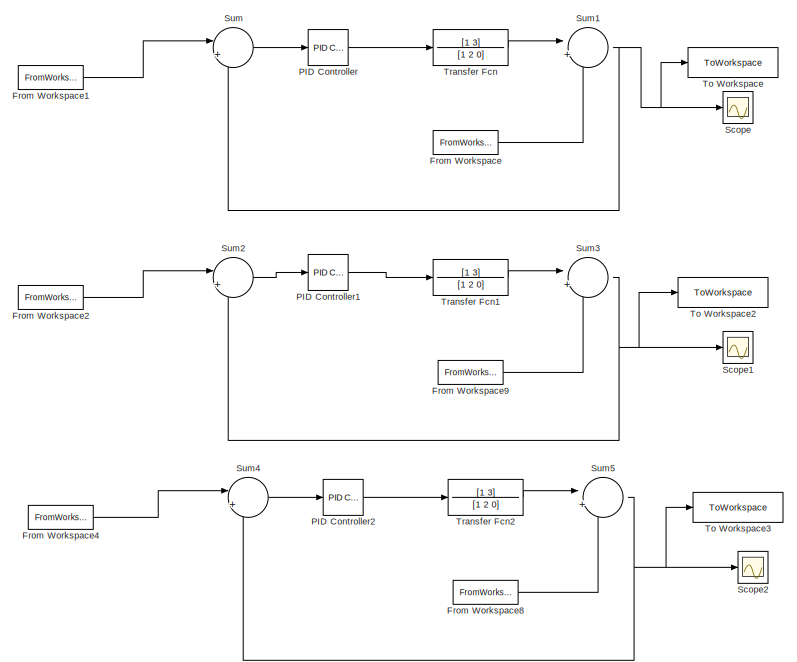
[diagram: root canvas - part 1/2, left side, full height]
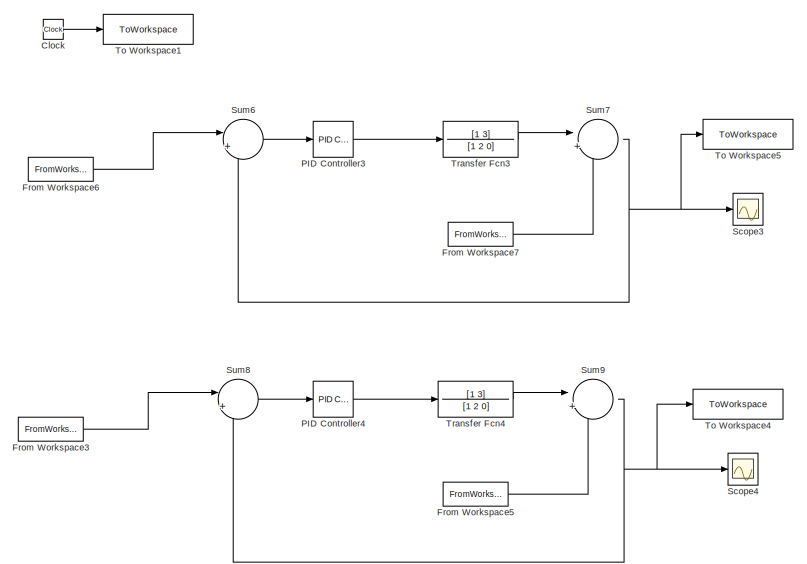
[diagram: root canvas - part 2/2, right side, full height]
MODEL slx_20164cb45cb2
KIND model
CONFIG AbsTol = auto
CONFIG EnableMultiTasking = off
CONFIG FixedStep = auto
CONFIG MaxStep = auto
CONFIG MinStep = auto
CONFIG RelTol = 1e-3
CONFIG SampleTimeConstraint = Unconstrained
CONFIG SolverName = VariableStepAuto
CONFIG StartTime = 0.0
CONFIG StopTime = 20
BLOCK [Clock] Clock
BLOCK [FromWorkspace] From Workspace
  VariableName = Theta
BLOCK [FromWorkspace] From Workspace1
  VariableName = Theta_desired
BLOCK [FromWorkspace] From Workspace2
  VariableName = X_desired
BLOCK [FromWorkspace] From Workspace3
  VariableName = Fy_desired
BLOCK [FromWorkspace] From Workspace4
  VariableName = Y_desired
BLOCK [FromWorkspace] From Workspace5
  VariableName = Fy
BLOCK [FromWorkspace] From Workspace6
  VariableName = Fx_desired
BLOCK [FromWorkspace] From Workspace7
  VariableName = Fx
BLOCK [FromWorkspace] From Workspace8
  VariableName = Y
BLOCK [FromWorkspace] From Workspace9
  VariableName = X
BLOCK [Reference] PID Controller  REF=slpidlib/PID Controller
  LibrarySourceBlock = simulink/Continuous/PID Controller
  SourceBlock = slpidlib/PID Controller
  SourceType = PID 1dof
BLOCK [Reference] PID Controller1  REF=slpidlib/PID Controller
  LibrarySourceBlock = simulink/Continuous/PID Controller
  SourceBlock = slpidlib/PID Controller
  SourceType = PID 1dof
BLOCK [Reference] PID Controller2  REF=slpidlib/PID Controller
  LibrarySourceBlock = simulink/Continuous/PID Controller
  SourceBlock = slpidlib/PID Controller
  SourceType = PID 1dof
BLOCK [Reference] PID Controller3  REF=slpidlib/PID Controller
  LibrarySourceBlock = simulink/Continuous/PID Controller
  SourceBlock = slpidlib/PID Controller
  SourceType = PID 1dof
BLOCK [Reference] PID Controller4  REF=slpidlib/PID Controller
  LibrarySourceBlock = simulink/Continuous/PID Controller
  SourceBlock = slpidlib/PID Controller
  SourceType = PID 1dof
BLOCK [Scope] Scope
  Floating = off
  NumInputPorts = 1
  ScopeSpecificationString = Simulink.scopes.TimeScopeBlockCfg('CurrentConfiguration', extmgr.ConfigurationSet(extmgr.Configuration('Core','General UI',true),extmgr.Configuration('Core','Source UI',true),extmgr.Configuration('Sources','WiredSimulink',true),extmgr.Configuration('Visuals','Time Domain',true,'SerializedDisplays',{struct('MinYLimReal','-6.82177','MaxYLimReal','1.39596','YLabelReal','','MinYLimMag','0.00000','MaxY...<+1392ch>
BLOCK [Scope] Scope1
  Floating = off
  NumInputPorts = 1
  ScopeSpecificationString = Simulink.scopes.TimeScopeBlockCfg('CurrentConfiguration', extmgr.ConfigurationSet(extmgr.Configuration('Core','General UI',true),extmgr.Configuration('Core','Source UI',true),extmgr.Configuration('Sources','WiredSimulink',true,'DataLoggingVariableName','ScopeData1'),extmgr.Configuration('Visuals','Time Domain',true,'SerializedDisplays',{struct('MinYLimReal','-0.17195','MaxYLimReal','0.85588','YLab...<+1431ch>
BLOCK [Scope] Scope2
  Floating = off
  NumInputPorts = 1
  ScopeSpecificationString = Simulink.scopes.TimeScopeBlockCfg('CurrentConfiguration', extmgr.ConfigurationSet(extmgr.Configuration('Core','General UI',true),extmgr.Configuration('Core','Source UI',true),extmgr.Configuration('Sources','WiredSimulink',true,'DataLoggingVariableName','ScopeData2'),extmgr.Configuration('Visuals','Time Domain',true,'SerializedDisplays',{struct('MinYLimReal','-0.12707','MaxYLimReal','0.59445','YLab...<+1431ch>
BLOCK [Scope] Scope3
  Floating = off
  NumInputPorts = 1
  ScopeSpecificationString = Simulink.scopes.TimeScopeBlockCfg('CurrentConfiguration', extmgr.ConfigurationSet(extmgr.Configuration('Core','General UI',true),extmgr.Configuration('Core','Source UI',true),extmgr.Configuration('Sources','WiredSimulink',true,'DataLoggingVariableName','ScopeData1'),extmgr.Configuration('Visuals','Time Domain',true,'SerializedDisplays',{struct('MinYLimReal','-7.0482','MaxYLimReal','34.11647','YLab...<+1433ch>
BLOCK [Scope] Scope4
  Floating = off
  NumInputPorts = 1
  ScopeSpecificationString = Simulink.scopes.TimeScopeBlockCfg('CurrentConfiguration', extmgr.ConfigurationSet(extmgr.Configuration('Core','General UI',true),extmgr.Configuration('Core','Source UI',true),extmgr.Configuration('Sources','WiredSimulink',true,'DataLoggingVariableName','ScopeData2'),extmgr.Configuration('Visuals','Time Domain',true,'SerializedDisplays',{struct('MinYLimReal','-3.80519','MaxYLimReal','14.86724','YLa...<+1435ch>
BLOCK [Sum] Sum
  Inputs = |+-
BLOCK [Sum] Sum1
  Inputs = |++
BLOCK [Sum] Sum2
  Inputs = |+-
BLOCK [Sum] Sum3
  Inputs = |++
BLOCK [Sum] Sum4
  Inputs = |+-
BLOCK [Sum] Sum5
  Inputs = |++
BLOCK [Sum] Sum6
  Inputs = |+-
BLOCK [Sum] Sum7
  Inputs = |++
BLOCK [Sum] Sum8
  Inputs = |+-
BLOCK [Sum] Sum9
  Inputs = |++
BLOCK [ToWorkspace] To Workspace
  FixptAsFi = on
  MaxDataPoints = inf
  SampleTime = -1
  VariableName = Theta
BLOCK [ToWorkspace] To Workspace1
  FixptAsFi = on
  MaxDataPoints = inf
  SampleTime = -1
  VariableName = time
BLOCK [ToWorkspace] To Workspace2
  FixptAsFi = on
  MaxDataPoints = inf
  SampleTime = -1
  VariableName = X
BLOCK [ToWorkspace] To Workspace3
  FixptAsFi = on
  MaxDataPoints = inf
  SampleTime = -1
  VariableName = Y
BLOCK [ToWorkspace] To Workspace4
  FixptAsFi = on
  MaxDataPoints = inf
  SampleTime = -1
  VariableName = Fy
BLOCK [ToWorkspace] To Workspace5
  FixptAsFi = on
  MaxDataPoints = inf
  SampleTime = -1
  VariableName = Fx
BLOCK [TransferFcn] Transfer Fcn
  Denominator = [1 2 0]
  Numerator = [1 3]
BLOCK [TransferFcn] Transfer Fcn1
  Denominator = [1 2 0]
  Numerator = [1 3]
BLOCK [TransferFcn] Transfer Fcn2
  Denominator = [1 2 0]
  Numerator = [1 3]
BLOCK [TransferFcn] Transfer Fcn3
  Denominator = [1 2 0]
  Numerator = [1 3]
BLOCK [TransferFcn] Transfer Fcn4
  Denominator = [1 2 0]
  Numerator = [1 3]
LINE Clock:1 -> To Workspace1:1
LINE From Workspace1:1 -> Sum:1
LINE From Workspace2:1 -> Sum2:1
LINE From Workspace3:1 -> Sum8:1
LINE From Workspace4:1 -> Sum4:1
LINE From Workspace5:1 -> Sum9:2
LINE From Workspace6:1 -> Sum6:1
LINE From Workspace7:1 -> Sum7:2
LINE From Workspace8:1 -> Sum5:2
LINE From Workspace9:1 -> Sum3:2
LINE From Workspace:1 -> Sum1:2
LINE PID Controller1:1 -> Transfer Fcn1:1
LINE PID Controller2:1 -> Transfer Fcn2:1
LINE PID Controller3:1 -> Transfer Fcn3:1
LINE PID Controller4:1 -> Transfer Fcn4:1
LINE PID Controller:1 -> Transfer Fcn:1
NET Sum1:1 -> Scope:1, Sum:2, To Workspace:1
LINE Sum2:1 -> PID Controller1:1
NET Sum3:1 -> Scope1:1, Sum2:2, To Workspace2:1
LINE Sum4:1 -> PID Controller2:1
NET Sum5:1 -> Scope2:1, Sum4:2, To Workspace3:1
LINE Sum6:1 -> PID Controller3:1
NET Sum7:1 -> Scope3:1, Sum6:2, To Workspace5:1
LINE Sum8:1 -> PID Controller4:1
NET Sum9:1 -> Scope4:1, Sum8:2, To Workspace4:1
LINE Sum:1 -> PID Controller:1
LINE Transfer Fcn1:1 -> Sum3:1
LINE Transfer Fcn2:1 -> Sum5:1
LINE Transfer Fcn3:1 -> Sum7:1
LINE Transfer Fcn4:1 -> Sum9:1
LINE Transfer Fcn:1 -> Sum1:1
note: NET lines group one-source signal fan-out (src -> all destinations, sorted); 1:1 wires keep LINE
